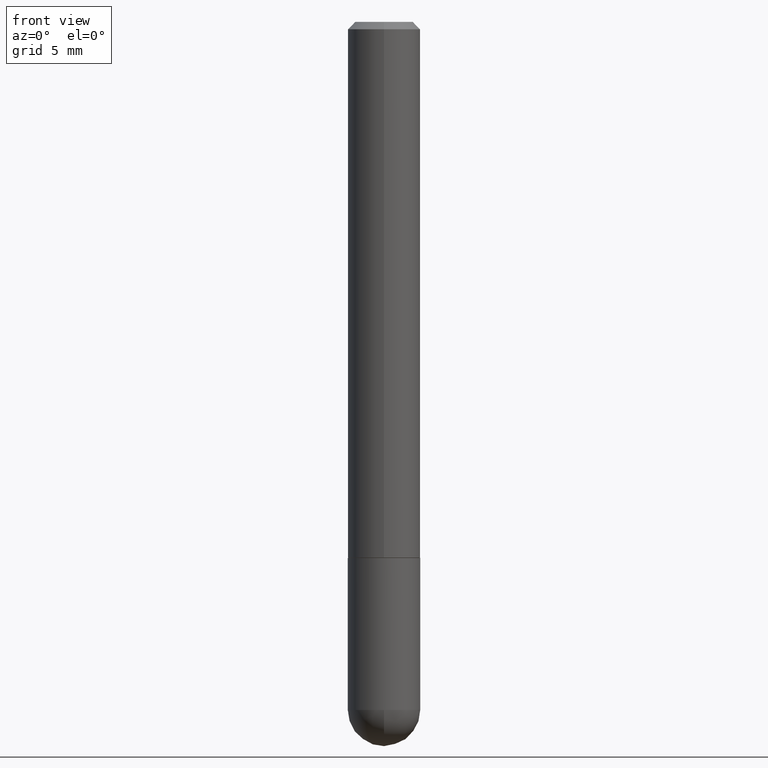
[diagram: clean part render]
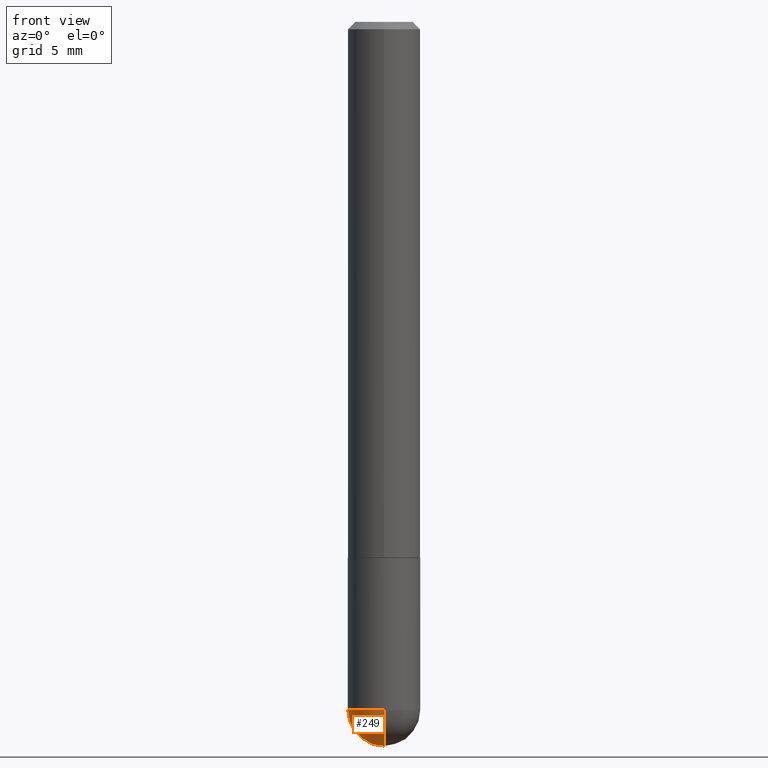
[diagram: same view with one face highlighted and labeled with its STEP entity id]
A machine part, front view. The second image highlights one B-rep face of the part: STEP entity #249.
In plain terms, the highlighted spherical surface has radius 2.5006 mm.
Its self-contained STEP definition (entity closure, byte-faithful):
#2 = VERTEX_POINT ( 'NONE', #285 ) ;
#17 = CIRCLE ( 'NONE', #369, 0.09845000000000017626 ) ;
#18 = DIRECTION ( 'NONE',  ( 1.000000000000000000, -6.982962677686265133E-15, 0.000000000000000000 ) ) ;
#27 = CARTESIAN_POINT ( 'NONE',  ( 4.573148941006514739E-29, -6.529244677703625427E-15, -1.870050000000000212 ) ) ;
#30 = AXIS2_PLACEMENT_3D ( 'NONE', #179, #82, #303 ) ;
#35 = CIRCLE ( 'NONE', #30, 0.09845000000000000973 ) ;
#40 = EDGE_CURVE ( 'NONE', #237, #2, #163, .T. ) ;
#48 = CARTESIAN_POINT ( 'NONE',  ( 6.874726756182577224E-16, 0.09844999999999333451, -1.870050000000000434 ) ) ;
#81 = EDGE_CURVE ( 'NONE', #138, #296, #17, .T. ) ;
#82 = DIRECTION ( 'NONE',  ( -2.445468806185136597E-29, 3.491481338843145583E-15, 1.000000000000000000 ) ) ;
#83 = DIRECTION ( 'NONE',  ( 1.000000000000000000, -6.982962677686265922E-15, 4.883557194083112340E-29 ) ) ;
#86 = SPHERICAL_SURFACE ( 'NONE', #173, 0.09845000000000017626 ) ;
#120 = CARTESIAN_POINT ( 'NONE',  ( -0.09845000000000000973, -5.108113448642400615E-15, -1.870050000000000212 ) ) ;
#121 = DIRECTION ( 'NONE',  ( 6.982962677686265922E-15, 1.000000000000000000, 0.000000000000000000 ) ) ;
#122 = ORIENTED_EDGE ( 'NONE', *, *, #137, .T. ) ;
#124 = FACE_OUTER_BOUND ( 'NONE', #148, .T. ) ;
#137 = EDGE_CURVE ( 'NONE', #138, #2, #221, .T. ) ;
#138 = VERTEX_POINT ( 'NONE', #385 ) ;
#145 = CARTESIAN_POINT ( 'NONE',  ( 4.242029163092629052E-29, -7.003427045843674934E-15, -1.870050000000000212 ) ) ;
#147 = CARTESIAN_POINT ( 'NONE',  ( 4.242029163092629052E-29, -7.003427045843674934E-15, -1.870050000000000212 ) ) ;
#148 = EDGE_LOOP ( 'NONE', ( #323, #122, #189, #370 ) ) ;
#150 = DIRECTION ( 'NONE',  ( 6.982962677686265922E-15, 1.000000000000000000, -2.774858297271973643E-15 ) ) ;
#163 = CIRCLE ( 'NONE', #190, 0.09845000000000000973 ) ;
#173 = AXIS2_PLACEMENT_3D ( 'NONE', #147, #273, #150 ) ;
#174 = DIRECTION ( 'NONE',  ( -1.000000000000000000, 7.105427357601001070E-15, -4.926315508542082329E-29 ) ) ;
#179 = CARTESIAN_POINT ( 'NONE',  ( 4.573148941006514739E-29, -6.529244677703625427E-15, -1.870050000000000212 ) ) ;
#180 = DIRECTION ( 'NONE',  ( -2.445468806185136597E-29, 3.491481338843145583E-15, 1.000000000000000000 ) ) ;
#189 = ORIENTED_EDGE ( 'NONE', *, *, #40, .F. ) ;
#190 = AXIS2_PLACEMENT_3D ( 'NONE', #27, #180, #18 ) ;
#218 = CARTESIAN_POINT ( 'NONE',  ( 4.242029163092629052E-29, -7.003427045843674934E-15, -1.870050000000000212 ) ) ;
#221 = CIRCLE ( 'NONE', #403, 0.09845000000000017626 ) ;
#237 = VERTEX_POINT ( 'NONE', #120 ) ;
#249 = ADVANCED_FACE ( 'NONE', ( #124 ), #86, .T. ) ;
#265 = DIRECTION ( 'NONE',  ( -7.105427357601001070E-15, -1.000000000000000000, 0.000000000000000000 ) ) ;
#273 = DIRECTION ( 'NONE',  ( -1.000000000000000000, 6.982962677686265922E-15, -4.883557194083112901E-29 ) ) ;
#285 = CARTESIAN_POINT ( 'NONE',  ( -6.995293233557750189E-16, -0.09845000000000685147, -1.870049999999999990 ) ) ;
#296 = VERTEX_POINT ( 'NONE', #48 ) ;
#303 = DIRECTION ( 'NONE',  ( 1.000000000000000000, -6.982962677686265133E-15, 0.000000000000000000 ) ) ;
#323 = ORIENTED_EDGE ( 'NONE', *, *, #81, .F. ) ;
#352 = EDGE_CURVE ( 'NONE', #296, #237, #35, .T. ) ;
#369 = AXIS2_PLACEMENT_3D ( 'NONE', #218, #83, #121 ) ;
#370 = ORIENTED_EDGE ( 'NONE', *, *, #352, .F. ) ;
#385 = CARTESIAN_POINT ( 'NONE',  ( 4.486995123120041491E-29, -7.341135059783980806E-15, -1.968500000000000361 ) ) ;
#403 = AXIS2_PLACEMENT_3D ( 'NONE', #145, #174, #265 ) ;